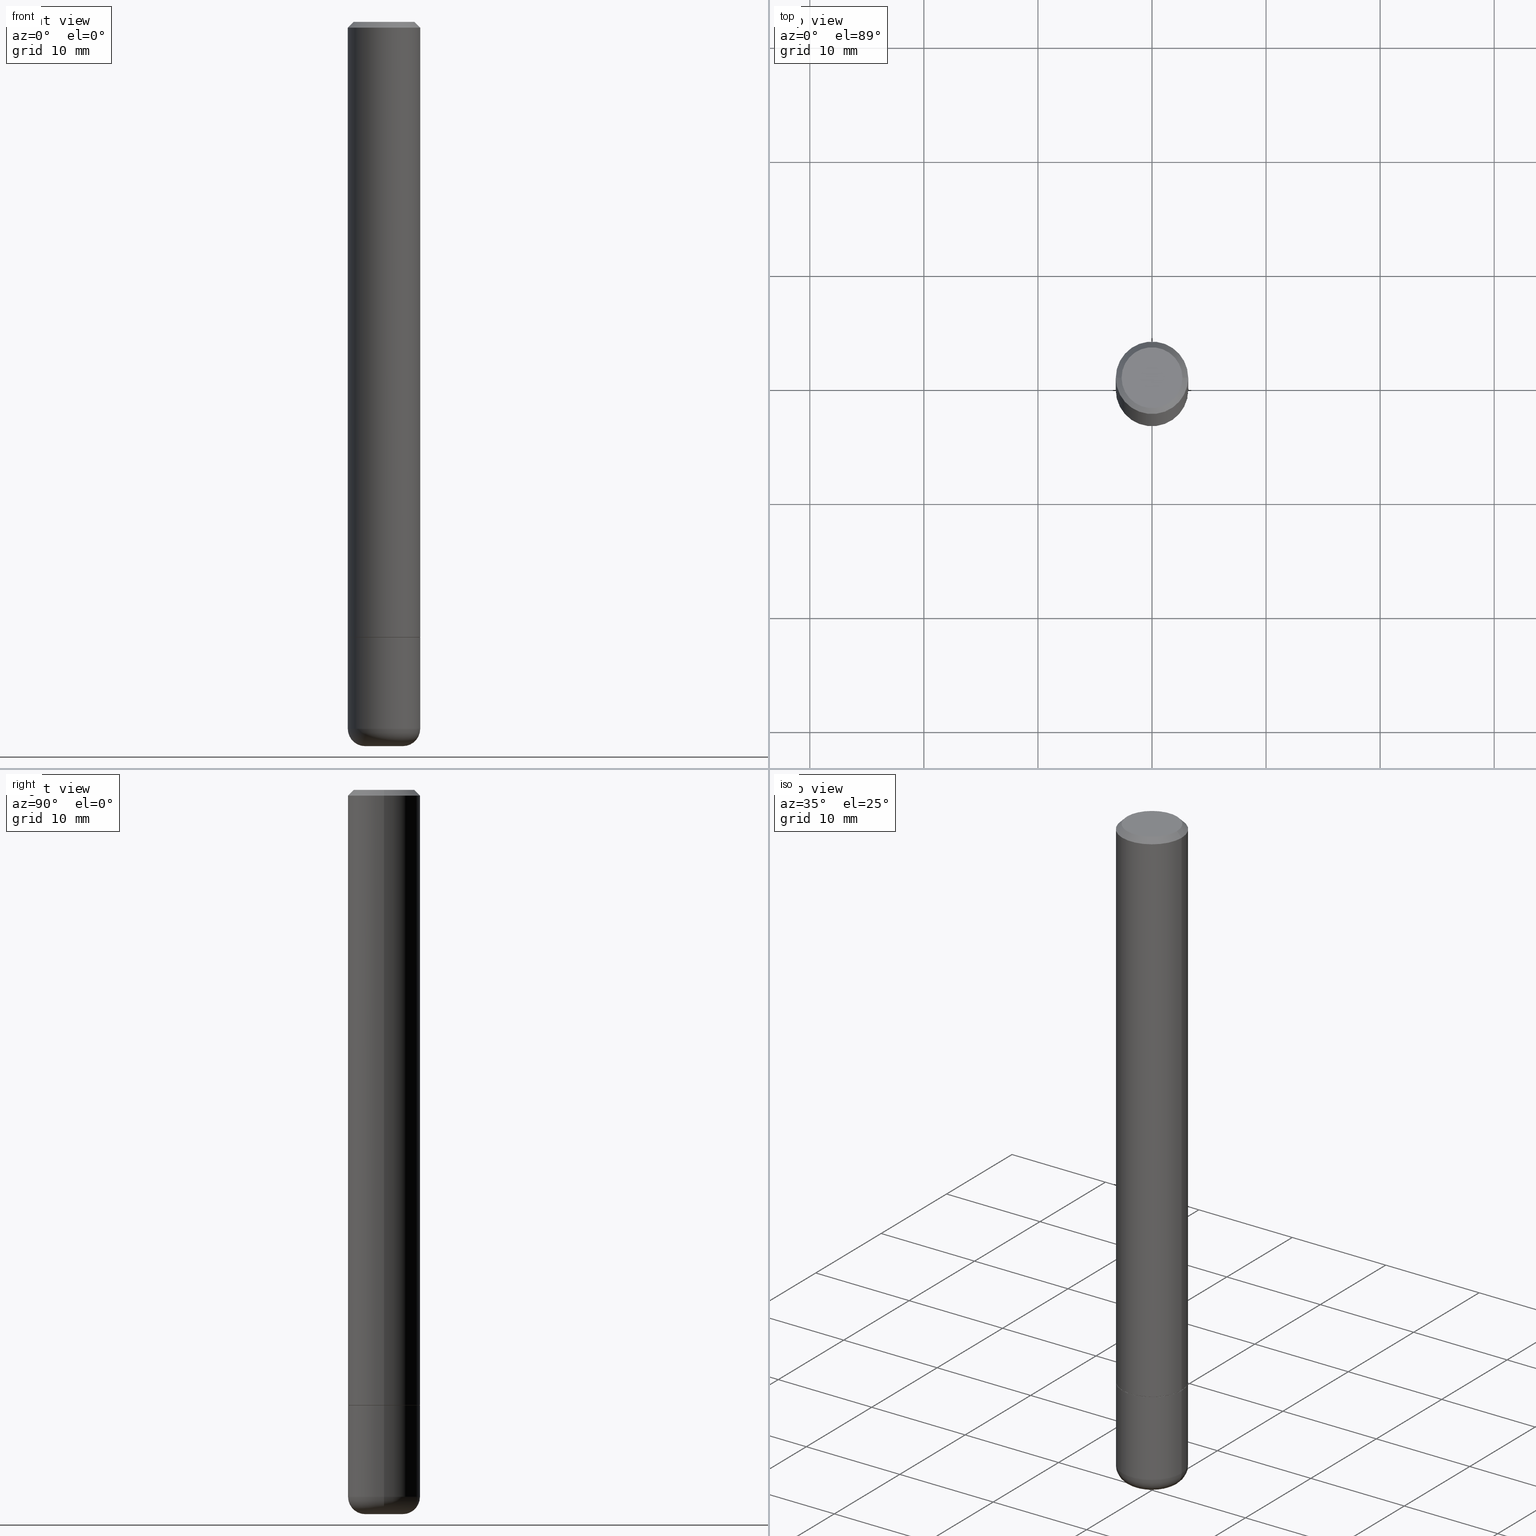
[diagram: canonical four-view strip — front | top / right | iso, engineering-drawing reading convention]
A machine part, canonical four-view strip (front | top / right | iso — engineering-drawing reading convention). The complete STEP part file that produces these views, byte-faithful:
ISO-10303-21;
HEADER;
FILE_DESCRIPTION (( 'STEP AP203' ),
    '1' );
FILE_NAME ('35578.STEP',
    '2022-11-02T20:21:41',
    ( '' ),
    ( '' ),
    'SwSTEP 2.0',
    'SolidWorks 2022',
    '' );
FILE_SCHEMA (( 'CONFIG_CONTROL_DESIGN' ));
ENDSEC;

DATA;
#1 = VERTEX_POINT ( 'NONE', #407 ) ;
#2 = COORDINATED_UNIVERSAL_TIME_OFFSET ( 5, 0, .BEHIND. ) ;
#3 = ORIENTED_EDGE ( 'NONE', *, *, #191, .T. ) ;
#4 = AXIS2_PLACEMENT_3D ( 'NONE', #312, #98, #247 ) ;
#5 =( LENGTH_UNIT ( ) NAMED_UNIT ( * ) SI_UNIT ( $, .METRE. ) );
#6 = EDGE_CURVE ( 'NONE', #241, #468, #33, .T. ) ;
#7 = EDGE_LOOP ( 'NONE', ( #38, #277, #259, #386 ) ) ;
#8 = CYLINDRICAL_SURFACE ( 'NONE', #411, 0.1249999999999993477 ) ;
#9 = VERTEX_POINT ( 'NONE', #68 ) ;
#10 = DATE_TIME_ROLE ( 'classification_date' ) ;
#11 = DIRECTION ( 'NONE',  ( 1.000000000000000000, -6.982962677686269077E-15, 0.000000000000000000 ) ) ;
#12 = VECTOR ( 'NONE', #18, 39.37007874015748143 ) ;
#13 = EDGE_CURVE ( 'NONE', #329, #319, #484, .T. ) ;
#14 = APPROVAL_PERSON_ORGANIZATION ( #226, #453, #150 ) ;
#15 = EDGE_LOOP ( 'NONE', ( #159, #309, #397, #42 ) ) ;
#16 = ORIENTED_EDGE ( 'NONE', *, *, #184, .F. ) ;
#17 = SHAPE_DEFINITION_REPRESENTATION ( #70, #414 ) ;
#18 = DIRECTION ( 'NONE',  ( 0.7071067811863059882, -2.468850131079726789E-15, 0.7071067811867890462 ) ) ;
#19 = VERTEX_POINT ( 'NONE', #476 ) ;
#20 = UNCERTAINTY_MEASURE_WITH_UNIT (LENGTH_MEASURE( 1.000000000000000082E-05 ), #492, 'distance_accuracy_value', 'NONE');
#21 = PERSON_AND_ORGANIZATION_ROLE ( 'creator' ) ;
#22 = LINE ( 'NONE', #56, #12 ) ;
#23 = DIRECTION ( 'NONE',  ( -2.445468806185136597E-29, 3.491481338843145583E-15, 1.000000000000000000 ) ) ;
#24 = CLOSED_SHELL ( 'NONE', ( #199, #488, #88, #296, #76, #207, #99, #155, #443 ) ) ;
#25 = AXIS2_PLACEMENT_3D ( 'NONE', #474, #93, #53 ) ;
#26 = LINE ( 'NONE', #77, #403 ) ;
#27 = ADVANCED_FACE ( 'NONE', ( #189 ), #313, .T. ) ;
#28 = DIRECTION ( 'NONE',  ( -2.445468806185136597E-29, 3.491481338843145583E-15, 1.000000000000000000 ) ) ;
#29 = CYLINDRICAL_SURFACE ( 'NONE', #348, 0.1249999999999997918 ) ;
#30 = CARTESIAN_POINT ( 'NONE',  ( 4.890937612370296805E-31, -6.982962677686323656E-17, -0.02000000000000009409 ) ) ;
#31 = DIRECTION ( 'NONE',  ( -1.000000000000000000, 6.982962677686275388E-15, 0.000000000000000000 ) ) ;
#32 = DIRECTION ( 'NONE',  ( -2.445468806185136877E-29, 3.491481338843145188E-15, 1.000000000000000000 ) ) ;
#33 = LINE ( 'NONE', #107, #40 ) ;
#34 = TOROIDAL_SURFACE ( 'NONE', #115, 0.06500000000000019651, 0.05999999999999985206 ) ;
#35 = SECURITY_CLASSIFICATION ( '', '', #134 ) ;
#36 = DIRECTION ( 'NONE',  ( -1.000000000000000000, 6.982962677686275388E-15, 0.000000000000000000 ) ) ;
#37 = DIRECTION ( 'NONE',  ( 1.000000000000000000, -6.982962677686263555E-15, 0.000000000000000000 ) ) ;
#38 = ORIENTED_EDGE ( 'NONE', *, *, #174, .T. ) ;
#39 = APPLICATION_PROTOCOL_DEFINITION ( 'international standard', 'config_control_design', 1994, #440 ) ;
#40 = VECTOR ( 'NONE', #74, 39.37007874015748143 ) ;
#41 = AXIS2_PLACEMENT_3D ( 'NONE', #424, #91, #237 ) ;
#42 = ORIENTED_EDGE ( 'NONE', *, *, #469, .F. ) ;
#43 =( GEOMETRIC_REPRESENTATION_CONTEXT ( 3 ) GLOBAL_UNCERTAINTY_ASSIGNED_CONTEXT ( ( #20 ) ) GLOBAL_UNIT_ASSIGNED_CONTEXT ( ( #492, #119, #231 ) ) REPRESENTATION_CONTEXT ( 'NONE', 'WORKASPACE' ) );
#44 = EDGE_CURVE ( 'NONE', #1, #9, #26, .T. ) ;
#45 = EDGE_LOOP ( 'NONE', ( #327, #58 ) ) ;
#46 = ORIENTED_EDGE ( 'NONE', *, *, #331, .F. ) ;
#47 = CC_DESIGN_PERSON_AND_ORGANIZATION_ASSIGNMENT ( #202, #236, ( #35 ) ) ;
#48 = DIRECTION ( 'NONE',  ( -2.445468806185136597E-29, 3.491481338843145583E-15, 1.000000000000000000 ) ) ;
#49 = VECTOR ( 'NONE', #406, 39.37007874015748143 ) ;
#50 = DIRECTION ( 'NONE',  ( -2.445468806185136597E-29, 3.491481338843145583E-15, 1.000000000000000000 ) ) ;
#51 = DIRECTION ( 'NONE',  ( 1.000000000000000000, -6.982962677686264344E-15, 0.000000000000000000 ) ) ;
#52 = ORIENTED_EDGE ( 'NONE', *, *, #174, .F. ) ;
#53 = DIRECTION ( 'NONE',  ( 1.000000000000000000, -6.982962677686268288E-15, 0.000000000000000000 ) ) ;
#54 = ORIENTED_EDGE ( 'NONE', *, *, #375, .F. ) ;
#55 = PERSON_AND_ORGANIZATION ( #303, #412 ) ;
#56 = CARTESIAN_POINT ( 'NONE',  ( 0.1239999999999995550, -8.285285217074779370E-15, -2.125000000000000888 ) ) ;
#57 = CIRCLE ( 'NONE', #79, 0.1049999999999992190 ) ;
#58 = ORIENTED_EDGE ( 'NONE', *, *, #216, .T. ) ;
#59 = PERSON_AND_ORGANIZATION ( #303, #412 ) ;
#60 = CC_DESIGN_PERSON_AND_ORGANIZATION_ASSIGNMENT ( #197, #377, ( #437 ) ) ;
#61 = CARTESIAN_POINT ( 'NONE',  ( 6.113672015462842613E-29, -8.728703347107864943E-15, -2.500000000000000000 ) ) ;
#62 = ORIENTED_EDGE ( 'NONE', *, *, #375, .T. ) ;
#63 = LINE ( 'NONE', #390, #432 ) ;
#64 = DIRECTION ( 'NONE',  ( 1.000000000000000000, -6.982962677686263555E-15, 0.000000000000000000 ) ) ;
#65 = EDGE_CURVE ( 'NONE', #289, #376, #57, .T. ) ;
#66 = CARTESIAN_POINT ( 'NONE',  ( 6.113387482807804113E-29, -8.728297109885438444E-15, -2.499883649035179900 ) ) ;
#67 = CONICAL_SURFACE ( 'NONE', #404, 0.05114390787009806538, 1.535889741755004367 ) ;
#68 = CARTESIAN_POINT ( 'NONE',  ( -0.1249999999999995559, -7.081131724556683478E-15, -2.125000000000000000 ) ) ;
#69 = AXIS2_PLACEMENT_3D ( 'NONE', #217, #336, #37 ) ;
#70 = PRODUCT_DEFINITION_SHAPE ( 'NONE', 'NONE',  #437 ) ;
#71 = CC_DESIGN_PERSON_AND_ORGANIZATION_ASSIGNMENT ( #82, #379, ( #140 ) ) ;
#72 = CARTESIAN_POINT ( 'NONE',  ( 0.1239999999999995550, -8.285285217074779370E-15, -2.125000000000000888 ) ) ;
#73 = MANIFOLD_SOLID_BREP ( 'Body-Move/Copy2[1]', #24 ) ;
#74 = DIRECTION ( 'NONE',  ( -2.445468806185136877E-29, 3.491481338843145188E-15, 1.000000000000000000 ) ) ;
#75 = CARTESIAN_POINT ( 'NONE',  ( -0.06447640787009809027, -7.950807469239815743E-15, -2.500000000000000000 ) ) ;
#76 = ADVANCED_FACE ( 'NONE', ( #325 ), #67, .F. ) ;
#77 = CARTESIAN_POINT ( 'NONE',  ( -0.1249999999999997918, 8.881784197001237532E-16, -6.148668862818622418E-30 ) ) ;
#78 = DIRECTION ( 'NONE',  ( -2.445468806185136597E-29, 3.491481338843145583E-15, 1.000000000000000000 ) ) ;
#79 = AXIS2_PLACEMENT_3D ( 'NONE', #218, #180, #220 ) ;
#80 = AXIS2_PLACEMENT_3D ( 'NONE', #347, #87, #345 ) ;
#81 = CARTESIAN_POINT ( 'NONE',  ( -0.1239999999999995550, -6.538324852699165710E-15, -2.125000000000000888 ) ) ;
#82 = PERSON_AND_ORGANIZATION ( #303, #412 ) ;
#83 = ORIENTED_EDGE ( 'NONE', *, *, #331, .T. ) ;
#84 = DATE_AND_TIME ( #153, #285 ) ;
#85 = AXIS2_PLACEMENT_3D ( 'NONE', #353, #177, #242 ) ;
#86 = CIRCLE ( 'NONE', #244, 0.05114390787009806538 ) ;
#87 = DIRECTION ( 'NONE',  ( -2.438088387897960049E-29, 3.491481338843145188E-15, 1.000000000000000000 ) ) ;
#88 = ADVANCED_FACE ( 'NONE', ( #137 ), #436, .T. ) ;
#89 = ORIENTED_EDGE ( 'NONE', *, *, #184, .T. ) ;
#90 = LOCAL_TIME ( 16, 21, 41.00000000000000000, #314 ) ;
#91 = DIRECTION ( 'NONE',  ( 2.445468806185136597E-29, -3.491481338843145583E-15, -1.000000000000000000 ) ) ;
#92 = FACE_OUTER_BOUND ( 'NONE', #439, .T. ) ;
#93 = DIRECTION ( 'NONE',  ( -2.445468806185136597E-29, 3.491481338843145583E-15, 1.000000000000000000 ) ) ;
#94 = CARTESIAN_POINT ( 'NONE',  ( -0.1239999999999995550, -6.533026398350942519E-15, -2.125000000000000888 ) ) ;
#95 = TOROIDAL_SURFACE ( 'NONE', #158, 0.06500000000000019651, 0.05999999999999985206 ) ;
#96 = ORIENTED_EDGE ( 'NONE', *, *, #216, .F. ) ;
#97 = ORIENTED_EDGE ( 'NONE', *, *, #416, .T. ) ;
#98 = DIRECTION ( 'NONE',  ( -2.445468806185136597E-29, 3.491481338843145583E-15, 1.000000000000000000 ) ) ;
#99 = ADVANCED_FACE ( 'NONE', ( #139 ), #29, .T. ) ;
#100 = DIRECTION ( 'NONE',  ( 1.000000000000000000, -6.982962677686263555E-15, 0.000000000000000000 ) ) ;
#101 = PLANE ( 'NONE',  #80 ) ;
#102 = FACE_OUTER_BOUND ( 'NONE', #45, .T. ) ;
#103 = DIRECTION ( 'NONE',  ( 1.000000000000000000, -6.982962677686265922E-15, 4.876176775795935793E-29 ) ) ;
#104 = CIRCLE ( 'NONE', #421, 0.06447640787009809027 ) ;
#105 = VERTEX_POINT ( 'NONE', #287 ) ;
#106 = LINE ( 'NONE', #149, #450 ) ;
#107 = CARTESIAN_POINT ( 'NONE',  ( -0.1249999999999993477, 8.881784197001205978E-16, -6.148668862818600698E-30 ) ) ;
#108 = DIRECTION ( 'NONE',  ( -0.7071067811865465735, 2.468850131082246805E-15, -0.7071067811865484609 ) ) ;
#109 = CARTESIAN_POINT ( 'NONE',  ( 4.890937612370296805E-31, -6.982962677686323656E-17, -0.02000000000000009409 ) ) ;
#110 = DIRECTION ( 'NONE',  ( 0.000000000000000000, 0.000000000000000000, 1.000000000000000000 ) ) ;
#111 = EDGE_CURVE ( 'NONE', #121, #311, #187, .T. ) ;
#112 = CALENDAR_DATE ( 2022, 2, 11 ) ;
#113 = CALENDAR_DATE ( 2022, 2, 11 ) ;
#114 = AXIS2_PLACEMENT_3D ( 'NONE', #293, #446, #297 ) ;
#115 = AXIS2_PLACEMENT_3D ( 'NONE', #206, #398, #361 ) ;
#116 = ADVANCED_FACE ( 'NONE', ( #102 ), #250, .F. ) ;
#117 = DIRECTION ( 'NONE',  ( -2.445468806185136597E-29, 3.491481338843145583E-15, 1.000000000000000000 ) ) ;
#118 = ORIENTED_EDGE ( 'NONE', *, *, #359, .F. ) ;
#119 =( NAMED_UNIT ( * ) PLANE_ANGLE_UNIT ( ) SI_UNIT ( $, .RADIAN. ) );
#120 = ORIENTED_EDGE ( 'NONE', *, *, #382, .T. ) ;
#121 = VERTEX_POINT ( 'NONE', #94 ) ;
#122 = CIRCLE ( 'NONE', #4, 0.1049999999999992190 ) ;
#123 = AXIS2_PLACEMENT_3D ( 'NONE', #381, #48, #198 ) ;
#124 = CARTESIAN_POINT ( 'NONE',  ( 6.113672015462842613E-29, -8.728703347107864943E-15, -2.500000000000000000 ) ) ;
#125 = EDGE_CURVE ( 'NONE', #266, #241, #491, .T. ) ;
#126 = DATE_AND_TIME ( #387, #302 ) ;
#127 = FACE_OUTER_BOUND ( 'NONE', #451, .T. ) ;
#128 = ORIENTED_EDGE ( 'NONE', *, *, #111, .F. ) ;
#129 = ORIENTED_EDGE ( 'NONE', *, *, #44, .F. ) ;
#130 = CARTESIAN_POINT ( 'NONE',  ( 6.113672015462842613E-29, -8.728703347107864943E-15, -2.500000000000000000 ) ) ;
#131 = APPROVAL_DATE_TIME ( #473, #318 ) ;
#132 = EDGE_CURVE ( 'NONE', #208, #360, #444, .T. ) ;
#133 = VECTOR ( 'NONE', #203, 39.37007874015748143 ) ;
#134 = SECURITY_CLASSIFICATION_LEVEL ( 'unclassified' ) ;
#135 = CARTESIAN_POINT ( 'NONE',  ( 5.966949474049262823E-29, -8.519222443471929064E-15, -2.440002284616149986 ) ) ;
#136 = CC_DESIGN_APPROVAL ( #306, ( #35 ) ) ;
#137 = FACE_OUTER_BOUND ( 'NONE', #7, .T. ) ;
#138 = DIRECTION ( 'NONE',  ( -1.000000000000000000, 6.982962677686264344E-15, 0.000000000000000000 ) ) ;
#139 = FACE_OUTER_BOUND ( 'NONE', #235, .T. ) ;
#140 = PRODUCT ( '35578', '35578', '', ( #490 ) ) ;
#141 = DIRECTION ( 'NONE',  ( -2.445468806185136597E-29, 3.491481338843145583E-15, 1.000000000000000000 ) ) ;
#142 = ORIENTED_EDGE ( 'NONE', *, *, #125, .T. ) ;
#143 = CARTESIAN_POINT ( 'NONE',  ( 5.196621213143415268E-29, -7.419397845041685201E-15, -2.125000000000000000 ) ) ;
#144 = AXIS2_PLACEMENT_3D ( 'NONE', #315, #435, #280 ) ;
#145 = CARTESIAN_POINT ( 'NONE',  ( 0.000000000000000000, 0.000000000000000000, 0.000000000000000000 ) ) ;
#146 = APPLICATION_CONTEXT ( 'configuration controlled 3d designs of mechanical parts and assemblies' ) ;
#147 = LINE ( 'NONE', #367, #477 ) ;
#148 = EDGE_CURVE ( 'NONE', #311, #266, #22, .T. ) ;
#149 = CARTESIAN_POINT ( 'NONE',  ( -0.06447640787009809027, -8.278466997359692357E-15, -2.500000000000000000 ) ) ;
#150 = APPROVAL_ROLE ( '' ) ;
#151 = EDGE_CURVE ( 'NONE', #376, #264, #321, .T. ) ;
#152 = CIRCLE ( 'NONE', #452, 0.1249999999999992090 ) ;
#153 = CALENDAR_DATE ( 2022, 2, 11 ) ;
#154 = ORIENTED_EDGE ( 'NONE', *, *, #125, .F. ) ;
#155 = ADVANCED_FACE ( 'NONE', ( #127 ), #34, .T. ) ;
#156 = DATE_TIME_ROLE ( 'creation_date' ) ;
#157 = AXIS2_PLACEMENT_3D ( 'NONE', #185, #330, #479 ) ;
#158 = AXIS2_PLACEMENT_3D ( 'NONE', #308, #50, #337 ) ;
#159 = ORIENTED_EDGE ( 'NONE', *, *, #389, .F. ) ;
#160 = PERSON_AND_ORGANIZATION ( #303, #412 ) ;
#161 = EDGE_LOOP ( 'NONE', ( #54, #357, #118 ) ) ;
#162 = EDGE_CURVE ( 'NONE', #19, #208, #393, .T. ) ;
#163 = DIRECTION ( 'NONE',  ( -1.000000000000000000, 6.982962677686265922E-15, -4.876176775795935793E-29 ) ) ;
#164 = ORIENTED_EDGE ( 'NONE', *, *, #162, .T. ) ;
#165 = AXIS2_PLACEMENT_3D ( 'NONE', #409, #256, #100 ) ;
#166 = AXIS2_PLACEMENT_3D ( 'NONE', #248, #400, #64 ) ;
#167 = APPROVAL_STATUS ( 'not_yet_approved' ) ;
#168 = FACE_OUTER_BOUND ( 'NONE', #442, .T. ) ;
#169 = ORIENTED_EDGE ( 'NONE', *, *, #307, .T. ) ;
#170 = ORIENTED_EDGE ( 'NONE', *, *, #419, .T. ) ;
#171 = APPROVAL_DATE_TIME ( #320, #306 ) ;
#172 = DIRECTION ( 'NONE',  ( -1.000000000000000000, 6.982962677686264344E-15, 0.000000000000000000 ) ) ;
#173 = ORIENTED_EDGE ( 'NONE', *, *, #223, .T. ) ;
#174 = EDGE_CURVE ( 'NONE', #105, #1, #339, .T. ) ;
#175 = EDGE_LOOP ( 'NONE', ( #282, #128 ) ) ;
#176 = APPROVAL_ROLE ( '' ) ;
#177 = DIRECTION ( 'NONE',  ( -2.445468806185136597E-29, 3.491481338843145583E-15, 1.000000000000000000 ) ) ;
#178 = CIRCLE ( 'NONE', #396, 0.1249999999999995559 ) ;
#179 = FACE_OUTER_BOUND ( 'NONE', #343, .T. ) ;
#180 = DIRECTION ( 'NONE',  ( -2.445468806185136597E-29, 3.491481338843145583E-15, 1.000000000000000000 ) ) ;
#181 = DIRECTION ( 'NONE',  ( -2.445468806185136597E-29, 3.491481338843145583E-15, 1.000000000000000000 ) ) ;
#182 = CARTESIAN_POINT ( 'NONE',  ( 7.332110811570524037E-16, 0.1049999999999992190, -3.900823592740798305E-16 ) ) ;
#183 = DIRECTION ( 'NONE',  ( 2.445468806185136597E-29, -3.491481338843145583E-15, -1.000000000000000000 ) ) ;
#184 = EDGE_CURVE ( 'NONE', #9, #240, #425, .T. ) ;
#185 = CARTESIAN_POINT ( 'NONE',  ( 0.000000000000000000, 0.000000000000000000, 0.000000000000000000 ) ) ;
#186 = DIRECTION ( 'NONE',  ( -2.445468806185136597E-29, 3.491481338843145583E-15, 1.000000000000000000 ) ) ;
#187 = CIRCLE ( 'NONE', #166, 0.1239999999999995550 ) ;
#188 = PRODUCT_DEFINITION_FORMATION_WITH_SPECIFIED_SOURCE ( 'ANY', '', #140, .NOT_KNOWN. ) ;
#189 = FACE_OUTER_BOUND ( 'NONE', #15, .T. ) ;
#190 = CARTESIAN_POINT ( 'NONE',  ( 0.05114390787009806538, -9.079169787426458453E-15, -2.499883649035179900 ) ) ;
#191 = EDGE_CURVE ( 'NONE', #1, #105, #274, .T. ) ;
#192 = CARTESIAN_POINT ( 'NONE',  ( -0.1049999999999992190, 7.681258945454834611E-16, -4.695363739110977184E-17 ) ) ;
#193 = CONICAL_SURFACE ( 'NONE', #354, 0.06447640787009809027, 1.562069680534929894 ) ;
#194 = ORIENTED_EDGE ( 'NONE', *, *, #268, .T. ) ;
#195 = APPROVAL_ROLE ( '' ) ;
#196 = ORIENTED_EDGE ( 'NONE', *, *, #389, .T. ) ;
#197 = PERSON_AND_ORGANIZATION ( #303, #412 ) ;
#198 = DIRECTION ( 'NONE',  ( 1.000000000000000000, -6.982962677686268288E-15, 0.000000000000000000 ) ) ;
#199 = ADVANCED_FACE ( 'NONE', ( #179 ), #193, .F. ) ;
#200 = CARTESIAN_POINT ( 'NONE',  ( 0.1249999999999994865, -8.288776698413622377E-15, -2.124000000000000110 ) ) ;
#201 = PRODUCT_RELATED_PRODUCT_CATEGORY ( 'detail', '', ( #140 ) ) ;
#202 = PERSON_AND_ORGANIZATION ( #303, #412 ) ;
#203 = DIRECTION ( 'NONE',  ( 0.7071067811865465735, -7.319954787623252890E-15, -0.7071067811865484609 ) ) ;
#204 = CONICAL_SURFACE ( 'NONE', #385, 0.05114390787009806538, 1.535889741755004367 ) ;
#205 = COORDINATED_UNIVERSAL_TIME_OFFSET ( 5, 0, .BEHIND. ) ;
#206 = CARTESIAN_POINT ( 'NONE',  ( 5.966949474049262823E-29, -8.519222443471929064E-15, -2.440002284616149986 ) ) ;
#207 = ADVANCED_FACE ( 'NONE', ( #168 ), #317, .F. ) ;
#208 = VERTEX_POINT ( 'NONE', #429 ) ;
#209 = CARTESIAN_POINT ( 'NONE',  ( 0.1249999999999992090, -9.273918764982992215E-16, -0.02000000000000009409 ) ) ;
#210 = ORIENTED_EDGE ( 'NONE', *, *, #268, .F. ) ;
#211 = CARTESIAN_POINT ( 'NONE',  ( 0.06500000000000019651, -8.973115017521537346E-15, -2.440002284616149986 ) ) ;
#212 = ORIENTED_EDGE ( 'NONE', *, *, #382, .F. ) ;
#213 = CARTESIAN_POINT ( 'NONE',  ( 0.000000000000000000, 0.000000000000000000, 0.000000000000000000 ) ) ;
#214 = CONICAL_SURFACE ( 'NONE', #445, 0.06447640787009809027, 1.562069680534929894 ) ;
#215 = CARTESIAN_POINT ( 'NONE',  ( -0.05114390787009806538, -8.371161110037518943E-15, -2.499883649035179900 ) ) ;
#216 = EDGE_CURVE ( 'NONE', #376, #289, #122, .T. ) ;
#217 = CARTESIAN_POINT ( 'NONE',  ( 5.196621213143416389E-29, -7.419397845041686779E-15, -2.125000000000000888 ) ) ;
#218 = CARTESIAN_POINT ( 'NONE',  ( 1.148236555768741665E-45, -1.639377487418492057E-31, -4.695363739110452099E-17 ) ) ;
#219 = DIRECTION ( 'NONE',  ( -0.9999619230641714207, 6.952228252019186602E-15, -0.008726535498369011531 ) ) ;
#220 = DIRECTION ( 'NONE',  ( 1.000000000000000000, -6.982962677686267499E-15, 4.874400871621274649E-29 ) ) ;
#221 = FACE_OUTER_BOUND ( 'NONE', #238, .T. ) ;
#222 = AXIS2_PLACEMENT_3D ( 'NONE', #213, #326, #103 ) ;
#223 = EDGE_CURVE ( 'NONE', #105, #240, #63, .T. ) ;
#224 = CARTESIAN_POINT ( 'NONE',  ( 6.113387482807804113E-29, -8.728297109885438444E-15, -2.499883649035179900 ) ) ;
#225 = CC_DESIGN_PERSON_AND_ORGANIZATION_ASSIGNMENT ( #160, #21, ( #188 ) ) ;
#226 = PERSON_AND_ORGANIZATION ( #303, #412 ) ;
#227 = LENGTH_MEASURE_WITH_UNIT ( LENGTH_MEASURE( 0.02539999999999999897 ), #5 );
#228 = MANIFOLD_SOLID_BREP ( 'Body-Move/Copy2[2]', #299 ) ;
#229 = AXIS2_PLACEMENT_3D ( 'NONE', #61, #427, #399 ) ;
#230 = LOCAL_TIME ( 16, 21, 41.00000000000000000, #2 ) ;
#231 =( NAMED_UNIT ( * ) SI_UNIT ( $, .STERADIAN. ) SOLID_ANGLE_UNIT ( ) );
#232 = CARTESIAN_POINT ( 'NONE',  ( 0.000000000000000000, 0.000000000000000000, 0.000000000000000000 ) ) ;
#233 = DIRECTION ( 'NONE',  ( 1.000000000000000000, 0.000000000000000000, 0.000000000000000000 ) ) ;
#234 = CIRCLE ( 'NONE', #371, 0.05114390787009806538 ) ;
#235 = EDGE_LOOP ( 'NONE', ( #129, #3, #173, #16 ) ) ;
#236 = PERSON_AND_ORGANIZATION_ROLE ( 'classification_officer' ) ;
#237 = DIRECTION ( 'NONE',  ( -1.000000000000000000, 6.982962677686267499E-15, 0.000000000000000000 ) ) ;
#238 = EDGE_LOOP ( 'NONE', ( #96, #362, #245, #254 ) ) ;
#239 = CARTESIAN_POINT ( 'NONE',  ( 0.000000000000000000, 0.000000000000000000, 0.000000000000000000 ) ) ;
#240 = VERTEX_POINT ( 'NONE', #324 ) ;
#241 = VERTEX_POINT ( 'NONE', #467 ) ;
#242 = DIRECTION ( 'NONE',  ( 1.000000000000000000, -6.982962677686269077E-15, 0.000000000000000000 ) ) ;
#243 = VECTOR ( 'NONE', #32, 39.37007874015748143 ) ;
#244 = AXIS2_PLACEMENT_3D ( 'NONE', #224, #78, #288 ) ;
#245 = ORIENTED_EDGE ( 'NONE', *, *, #346, .T. ) ;
#246 = ORIENTED_EDGE ( 'NONE', *, *, #359, .T. ) ;
#247 = DIRECTION ( 'NONE',  ( 1.000000000000000000, -6.982962677686267499E-15, 4.874400871621274649E-29 ) ) ;
#248 = CARTESIAN_POINT ( 'NONE',  ( 5.196621213143416389E-29, -7.419397845041686779E-15, -2.125000000000000888 ) ) ;
#249 = CARTESIAN_POINT ( 'NONE',  ( -0.05114390787009806538, -8.371161110037518943E-15, -2.499883649035179900 ) ) ;
#250 = PLANE ( 'NONE',  #364 ) ;
#251 = EDGE_CURVE ( 'NONE', #208, #105, #463, .T. ) ;
#252 = AXIS2_PLACEMENT_3D ( 'NONE', #211, #478, #278 ) ;
#253 = DIRECTION ( 'NONE',  ( 1.000000000000000000, -6.982962677686264344E-15, 0.000000000000000000 ) ) ;
#254 = ORIENTED_EDGE ( 'NONE', *, *, #419, .F. ) ;
#255 = CARTESIAN_POINT ( 'NONE',  ( 6.109019913137040707E-29, -8.722061377921489685E-15, -2.498097664417540553 ) ) ;
#256 = DIRECTION ( 'NONE',  ( -2.445468806185136597E-29, 3.491481338843145583E-15, 1.000000000000000000 ) ) ;
#257 = DIRECTION ( 'NONE',  ( 2.445468806185136597E-29, -3.491481338843145583E-15, -1.000000000000000000 ) ) ;
#258 = ADVANCED_FACE ( 'NONE', ( #272 ), #269, .T. ) ;
#259 = ORIENTED_EDGE ( 'NONE', *, *, #304, .F. ) ;
#260 = CARTESIAN_POINT ( 'NONE',  ( 0.1249999999999993477, -8.728703347107787043E-16, 6.095220969744888212E-30 ) ) ;
#261 = AXIS2_PLACEMENT_3D ( 'NONE', #333, #141, #369 ) ;
#262 = APPROVAL_PERSON_ORGANIZATION ( #265, #318, #195 ) ;
#263 = DESIGN_CONTEXT ( 'detailed design', #440, 'design' ) ;
#264 = VERTEX_POINT ( 'NONE', #388 ) ;
#265 = PERSON_AND_ORGANIZATION ( #303, #412 ) ;
#266 = VERTEX_POINT ( 'NONE', #200 ) ;
#267 = APPROVAL_STATUS ( 'not_yet_approved' ) ;
#268 = EDGE_CURVE ( 'NONE', #360, #208, #104, .T. ) ;
#269 = CONICAL_SURFACE ( 'NONE', #41, 0.1249999999999992090, 0.7853981633974469467 ) ;
#270 = ADVANCED_FACE ( 'NONE', ( #92 ), #8, .T. ) ;
#271 = ORIENTED_EDGE ( 'NONE', *, *, #148, .F. ) ;
#272 = FACE_OUTER_BOUND ( 'NONE', #391, .T. ) ;
#273 = VECTOR ( 'NONE', #322, 39.37007874015748143 ) ;
#274 = CIRCLE ( 'NONE', #301, 0.1250000000000000278 ) ;
#275 = CC_DESIGN_APPROVAL ( #318, ( #188 ) ) ;
#276 = DIRECTION ( 'NONE',  ( 0.9999619230641714207, -6.890705306874825328E-15, -0.008726535498369011531 ) ) ;
#277 = ORIENTED_EDGE ( 'NONE', *, *, #44, .T. ) ;
#278 = DIRECTION ( 'NONE',  ( 1.000000000000000000, -6.982962677686253300E-15, 0.000000000000000000 ) ) ;
#279 = ORIENTED_EDGE ( 'NONE', *, *, #6, .F. ) ;
#280 = DIRECTION ( 'NONE',  ( -1.000000000000000000, 6.982962677686265922E-15, -4.876176775795935793E-29 ) ) ;
#281 = ORIENTED_EDGE ( 'NONE', *, *, #481, .F. ) ;
#282 = ORIENTED_EDGE ( 'NONE', *, *, #416, .F. ) ;
#283 = CIRCLE ( 'NONE', #394, 0.1249999999999992090 ) ;
#284 = CC_DESIGN_PERSON_AND_ORGANIZATION_ASSIGNMENT ( #55, #310, ( #188 ) ) ;
#285 = LOCAL_TIME ( 16, 21, 41.00000000000000000, #422 ) ;
#286 = DIRECTION ( 'NONE',  ( 2.445468806185136597E-29, -3.491481338843145583E-15, -1.000000000000000000 ) ) ;
#287 = CARTESIAN_POINT ( 'NONE',  ( 0.1250000000000000278, -9.392092778182712402E-15, -2.440002284616149986 ) ) ;
#288 = DIRECTION ( 'NONE',  ( 1.000000000000000000, -6.982962677686255667E-15, 0.000000000000000000 ) ) ;
#289 = VERTEX_POINT ( 'NONE', #192 ) ;
#290 = LINE ( 'NONE', #190, #475 ) ;
#291 = CC_DESIGN_DATE_AND_TIME_ASSIGNMENT ( #454, #156, ( #437 ) ) ;
#292 = EDGE_LOOP ( 'NONE', ( #97, #196, #154, #271 ) ) ;
#293 = CARTESIAN_POINT ( 'NONE',  ( -0.06500000000000019651, -8.057369665227862744E-15, -2.440002284616149986 ) ) ;
#294 = LOCAL_TIME ( 16, 21, 41.00000000000000000, #342 ) ;
#295 = CARTESIAN_POINT ( 'NONE',  ( 6.113387482807804113E-29, -8.728297109885438444E-15, -2.499883649035179900 ) ) ;
#296 = ADVANCED_FACE ( 'NONE', ( #408 ), #204, .F. ) ;
#297 = DIRECTION ( 'NONE',  ( -1.000000000000000000, 7.105427357601008170E-15, 0.000000000000000000 ) ) ;
#298 = DIRECTION ( 'NONE',  ( 1.000000000000000000, -6.982962677686265922E-15, 4.876176775795935793E-29 ) ) ;
#299 = CLOSED_SHELL ( 'NONE', ( #352, #338, #426, #258, #270, #27, #460, #116 ) ) ;
#300 = APPROVAL_DATE_TIME ( #84, #453 ) ;
#301 = AXIS2_PLACEMENT_3D ( 'NONE', #135, #356, #11 ) ;
#302 = LOCAL_TIME ( 16, 21, 41.00000000000000000, #205 ) ;
#303 = PERSON ( 'UNSPECIFIED', 'UNSPECIFIED', 'UNSPECIFIED', ('UNSPECIFIED'), ('UNSPECIFIED'), ('UNSPECIFIED') ) ;
#304 = EDGE_CURVE ( 'NONE', #240, #9, #178, .T. ) ;
#305 = APPLICATION_PROTOCOL_DEFINITION ( 'international standard', 'config_control_design', 1994, #146 ) ;
#306 = APPROVAL ( #167, 'UNSPECIFIED' ) ;
#307 = EDGE_CURVE ( 'NONE', #360, #1, #332, .T. ) ;
#308 = CARTESIAN_POINT ( 'NONE',  ( 5.966949474049262823E-29, -8.519222443471929064E-15, -2.440002284616149986 ) ) ;
#309 = ORIENTED_EDGE ( 'NONE', *, *, #111, .T. ) ;
#310 = PERSON_AND_ORGANIZATION_ROLE ( 'design_supplier' ) ;
#311 = VERTEX_POINT ( 'NONE', #72 ) ;
#312 = CARTESIAN_POINT ( 'NONE',  ( 1.148236555768741665E-45, -1.639377487418492057E-31, -4.695363739110452099E-17 ) ) ;
#313 = CONICAL_SURFACE ( 'NONE', #165, 0.1239999999999995550, 0.7853981633971067744 ) ;
#314 = COORDINATED_UNIVERSAL_TIME_OFFSET ( 5, 0, .BEHIND. ) ;
#315 = CARTESIAN_POINT ( 'NONE',  ( 8.728703347108319524E-16, 0.1249999999999921313, -2.125000000000000888 ) ) ;
#316 = ORIENTED_EDGE ( 'NONE', *, *, #132, .T. ) ;
#317 = PLANE ( 'NONE',  #144 ) ;
#318 = APPROVAL ( #267, 'UNSPECIFIED' ) ;
#319 = VERTEX_POINT ( 'NONE', #249 ) ;
#320 = DATE_AND_TIME ( #466, #90 ) ;
#321 = LINE ( 'NONE', #209, #133 ) ;
#322 = DIRECTION ( 'NONE',  ( -0.9993908270190955401, 6.856857904024535960E-15, -0.03489949670250663133 ) ) ;
#323 = CIRCLE ( 'NONE', #69, 0.1239999999999995550 ) ;
#324 = CARTESIAN_POINT ( 'NONE',  ( 0.1249999999999995559, -8.292268179752463807E-15, -2.125000000000000000 ) ) ;
#325 = FACE_OUTER_BOUND ( 'NONE', #161, .T. ) ;
#326 = DIRECTION ( 'NONE',  ( -2.445468806185136597E-29, 3.491481338843145583E-15, 1.000000000000000000 ) ) ;
#327 = ORIENTED_EDGE ( 'NONE', *, *, #65, .T. ) ;
#328 = FACE_OUTER_BOUND ( 'NONE', #465, .T. ) ;
#329 = VERTEX_POINT ( 'NONE', #255 ) ;
#330 = DIRECTION ( 'NONE',  ( -2.445468806185136597E-29, 3.491481338843145583E-15, 1.000000000000000000 ) ) ;
#331 = EDGE_CURVE ( 'NONE', #266, #264, #480, .T. ) ;
#332 = CIRCLE ( 'NONE', #114, 0.05999999999999985206 ) ;
#333 = CARTESIAN_POINT ( 'NONE',  ( 5.196621213143416389E-29, -7.419397845041686779E-15, -2.125000000000000888 ) ) ;
#334 = ORIENTED_EDGE ( 'NONE', *, *, #251, .T. ) ;
#335 = DIRECTION ( 'NONE',  ( 1.000000000000000000, -6.982962677686267499E-15, 0.000000000000000000 ) ) ;
#336 = DIRECTION ( 'NONE',  ( -2.445468806185136597E-29, 3.491481338843145583E-15, 1.000000000000000000 ) ) ;
#337 = DIRECTION ( 'NONE',  ( 1.000000000000000000, -6.982962677686268288E-15, 4.883557194083113462E-29 ) ) ;
#338 = ADVANCED_FACE ( 'NONE', ( #449 ), #401, .T. ) ;
#339 = CIRCLE ( 'NONE', #85, 0.1250000000000000278 ) ;
#340 = AXIS2_PLACEMENT_3D ( 'NONE', #30, #183, #410 ) ;
#341 = ORIENTED_EDGE ( 'NONE', *, *, #65, .F. ) ;
#342 = COORDINATED_UNIVERSAL_TIME_OFFSET ( 5, 0, .BEHIND. ) ;
#343 = EDGE_LOOP ( 'NONE', ( #350, #164, #210, #212 ) ) ;
#344 = ORIENTED_EDGE ( 'NONE', *, *, #151, .F. ) ;
#345 = DIRECTION ( 'NONE',  ( 1.000000000000000000, -6.982962677686265922E-15, 4.876176775795935793E-29 ) ) ;
#346 = EDGE_CURVE ( 'NONE', #264, #468, #283, .T. ) ;
#347 = CARTESIAN_POINT ( 'NONE',  ( 5.196621213143416389E-29, -7.419397845041685201E-15, -2.125000000000000444 ) ) ;
#348 = AXIS2_PLACEMENT_3D ( 'NONE', #145, #447, #370 ) ;
#349 = CC_DESIGN_APPROVAL ( #453, ( #437 ) ) ;
#350 = ORIENTED_EDGE ( 'NONE', *, *, #430, .T. ) ;
#351 = DIRECTION ( 'NONE',  ( -2.445468806185136597E-29, 3.491481338843145583E-15, 1.000000000000000000 ) ) ;
#352 = ADVANCED_FACE ( 'NONE', ( #413 ), #456, .T. ) ;
#353 = CARTESIAN_POINT ( 'NONE',  ( 5.966949474049262823E-29, -8.519222443471929064E-15, -2.440002284616149986 ) ) ;
#354 = AXIS2_PLACEMENT_3D ( 'NONE', #124, #286, #172 ) ;
#355 = ORIENTED_EDGE ( 'NONE', *, *, #346, .F. ) ;
#356 = DIRECTION ( 'NONE',  ( -2.445468806185136597E-29, 3.491481338843145583E-15, 1.000000000000000000 ) ) ;
#357 = ORIENTED_EDGE ( 'NONE', *, *, #13, .T. ) ;
#358 = CARTESIAN_POINT ( 'NONE',  ( 5.196621213143415268E-29, -7.419397845041685201E-15, -2.125000000000000000 ) ) ;
#359 = EDGE_CURVE ( 'NONE', #19, #319, #234, .T. ) ;
#360 = VERTEX_POINT ( 'NONE', #75 ) ;
#361 = DIRECTION ( 'NONE',  ( 1.000000000000000000, -6.982962677686268288E-15, 4.883557194083113462E-29 ) ) ;
#362 = ORIENTED_EDGE ( 'NONE', *, *, #151, .T. ) ;
#363 = CC_DESIGN_DATE_AND_TIME_ASSIGNMENT ( #126, #10, ( #35 ) ) ;
#364 = AXIS2_PLACEMENT_3D ( 'NONE', #182, #402, #163 ) ;
#365 = DIRECTION ( 'NONE',  ( 1.000000000000000000, -6.982962677686255667E-15, 0.000000000000000000 ) ) ;
#366 = DIRECTION ( 'NONE',  ( -2.445468806185136877E-29, 3.491481338843145188E-15, 1.000000000000000000 ) ) ;
#367 = CARTESIAN_POINT ( 'NONE',  ( -0.1249999999999992090, 8.030407079339147158E-16, -0.02000000000000009409 ) ) ;
#368 = DIRECTION ( 'NONE',  ( 2.445468806185136597E-29, -3.491481338843145583E-15, -1.000000000000000000 ) ) ;
#369 = DIRECTION ( 'NONE',  ( 1.000000000000000000, -6.982962677686263555E-15, 0.000000000000000000 ) ) ;
#370 = DIRECTION ( 'NONE',  ( 1.000000000000000000, -6.982962677686266711E-15, 4.876176775795935232E-29 ) ) ;
#371 = AXIS2_PLACEMENT_3D ( 'NONE', #448, #486, #365 ) ;
#372 = CONICAL_SURFACE ( 'NONE', #340, 0.1249999999999992090, 0.7853981633974469467 ) ;
#373 = DIRECTION ( 'NONE',  ( 2.445468806185136597E-29, -3.491481338843145583E-15, -1.000000000000000000 ) ) ;
#374 = LINE ( 'NONE', #81, #49 ) ;
#375 = EDGE_CURVE ( 'NONE', #329, #19, #290, .T. ) ;
#376 = VERTEX_POINT ( 'NONE', #489 ) ;
#377 = PERSON_AND_ORGANIZATION_ROLE ( 'creator' ) ;
#378 = ORIENTED_EDGE ( 'NONE', *, *, #481, .T. ) ;
#379 = PERSON_AND_ORGANIZATION_ROLE ( 'design_owner' ) ;
#380 = VECTOR ( 'NONE', #276, 39.37007874015748854 ) ;
#381 = CARTESIAN_POINT ( 'NONE',  ( 5.194175744337230786E-29, -7.415906363702842194E-15, -2.124000000000000110 ) ) ;
#382 = EDGE_CURVE ( 'NONE', #319, #360, #106, .T. ) ;
#383 = DIRECTION ( 'NONE',  ( 1.000000000000000000, -6.982962677686267499E-15, 0.000000000000000000 ) ) ;
#384 = CARTESIAN_POINT ( 'NONE',  ( -0.1249999999999992090, 8.030407079339147158E-16, -0.02000000000000009409 ) ) ;
#385 = AXIS2_PLACEMENT_3D ( 'NONE', #66, #257, #36 ) ;
#386 = ORIENTED_EDGE ( 'NONE', *, *, #223, .F. ) ;
#387 = CALENDAR_DATE ( 2022, 2, 11 ) ;
#388 = CARTESIAN_POINT ( 'NONE',  ( 0.1249999999999992090, -9.273918764982992215E-16, -0.02000000000000009409 ) ) ;
#389 = EDGE_CURVE ( 'NONE', #121, #241, #374, .T. ) ;
#390 = CARTESIAN_POINT ( 'NONE',  ( 0.1249999999999997918, -8.728703347107818597E-16, 6.095220969744909231E-30 ) ) ;
#391 = EDGE_LOOP ( 'NONE', ( #344, #341, #170, #378 ) ) ;
#392 = ORIENTED_EDGE ( 'NONE', *, *, #469, .T. ) ;
#393 = LINE ( 'NONE', #462, #380 ) ;
#394 = AXIS2_PLACEMENT_3D ( 'NONE', #109, #186, #335 ) ;
#395 = EDGE_LOOP ( 'NONE', ( #487, #62, #482 ) ) ;
#396 = AXIS2_PLACEMENT_3D ( 'NONE', #143, #28, #253 ) ;
#397 = ORIENTED_EDGE ( 'NONE', *, *, #148, .T. ) ;
#398 = DIRECTION ( 'NONE',  ( -2.445468806185136597E-29, 3.491481338843145583E-15, 1.000000000000000000 ) ) ;
#399 = DIRECTION ( 'NONE',  ( 1.000000000000000000, -6.982962677686280121E-15, 0.000000000000000000 ) ) ;
#400 = DIRECTION ( 'NONE',  ( -2.445468806185136597E-29, 3.491481338843145583E-15, 1.000000000000000000 ) ) ;
#401 = CYLINDRICAL_SURFACE ( 'NONE', #222, 0.1249999999999993477 ) ;
#402 = DIRECTION ( 'NONE',  ( 2.438088387897960049E-29, -3.491481338843145188E-15, -1.000000000000000000 ) ) ;
#403 = VECTOR ( 'NONE', #366, 39.37007874015748143 ) ;
#404 = AXIS2_PLACEMENT_3D ( 'NONE', #295, #368, #31 ) ;
#405 = APPROVAL_PERSON_ORGANIZATION ( #59, #306, #176 ) ;
#406 = DIRECTION ( 'NONE',  ( -0.7071067811863059882, 7.493145998869481680E-15, 0.7071067811867890462 ) ) ;
#407 = CARTESIAN_POINT ( 'NONE',  ( -0.1250000000000000555, -7.081131724556680322E-15, -2.440002284616149986 ) ) ;
#408 = FACE_OUTER_BOUND ( 'NONE', #395, .T. ) ;
#409 = CARTESIAN_POINT ( 'NONE',  ( 5.196621213143416389E-29, -7.419397845041686779E-15, -2.125000000000000888 ) ) ;
#410 = DIRECTION ( 'NONE',  ( -1.000000000000000000, 6.982962677686267499E-15, 0.000000000000000000 ) ) ;
#411 = AXIS2_PLACEMENT_3D ( 'NONE', #239, #181, #298 ) ;
#412 = ORGANIZATION ( 'UNSPECIFIED', 'UNSPECIFIED', '' ) ;
#413 = FACE_OUTER_BOUND ( 'NONE', #292, .T. ) ;
#414 = ADVANCED_BREP_SHAPE_REPRESENTATION ( '35578', ( #73, #228, #457 ), #43 ) ;
#415 = CARTESIAN_POINT ( 'NONE',  ( 4.890937612370296805E-31, -6.982962677686323656E-17, -0.02000000000000009409 ) ) ;
#416 = EDGE_CURVE ( 'NONE', #311, #121, #323, .T. ) ;
#417 = ORIENTED_EDGE ( 'NONE', *, *, #251, .F. ) ;
#418 = APPROVAL_STATUS ( 'not_yet_approved' ) ;
#419 = EDGE_CURVE ( 'NONE', #289, #468, #147, .T. ) ;
#420 = FACE_OUTER_BOUND ( 'NONE', #461, .T. ) ;
#421 = AXIS2_PLACEMENT_3D ( 'NONE', #130, #351, #431 ) ;
#422 = COORDINATED_UNIVERSAL_TIME_OFFSET ( 5, 0, .BEHIND. ) ;
#423 = EDGE_LOOP ( 'NONE', ( #142, #428, #355, #46 ) ) ;
#424 = CARTESIAN_POINT ( 'NONE',  ( 4.890937612370296805E-31, -6.982962677686323656E-17, -0.02000000000000009409 ) ) ;
#425 = CIRCLE ( 'NONE', #485, 0.1249999999999995559 ) ;
#426 = ADVANCED_FACE ( 'NONE', ( #221 ), #372, .T. ) ;
#427 = DIRECTION ( 'NONE',  ( -2.445468806185136597E-29, 3.491481338843145583E-15, 1.000000000000000000 ) ) ;
#428 = ORIENTED_EDGE ( 'NONE', *, *, #6, .T. ) ;
#429 = CARTESIAN_POINT ( 'NONE',  ( 0.06447640787009809027, -9.178939696856037528E-15, -2.500000000000000000 ) ) ;
#430 = EDGE_CURVE ( 'NONE', #319, #19, #86, .T. ) ;
#431 = DIRECTION ( 'NONE',  ( 1.000000000000000000, -6.982962677686280121E-15, 0.000000000000000000 ) ) ;
#432 = VECTOR ( 'NONE', #471, 39.37007874015748143 ) ;
#433 = ORIENTED_EDGE ( 'NONE', *, *, #191, .F. ) ;
#434 = ORIENTED_EDGE ( 'NONE', *, *, #162, .F. ) ;
#435 = DIRECTION ( 'NONE',  ( 2.438088387897960049E-29, -3.491481338843145188E-15, -1.000000000000000000 ) ) ;
#436 = CYLINDRICAL_SURFACE ( 'NONE', #157, 0.1249999999999997918 ) ;
#437 = PRODUCT_DEFINITION ( 'UNKNOWN', '', #188, #263 ) ;
#438 = FACE_OUTER_BOUND ( 'NONE', #175, .T. ) ;
#439 = EDGE_LOOP ( 'NONE', ( #279, #392, #83, #281 ) ) ;
#440 = APPLICATION_CONTEXT ( 'configuration controlled 3d designs of mechanical parts and assemblies' ) ;
#441 = DIRECTION ( 'NONE',  ( 0.9993908270190955401, -6.978169709227559632E-15, -0.03489949670250663133 ) ) ;
#442 = EDGE_LOOP ( 'NONE', ( #459, #89 ) ) ;
#443 = ADVANCED_FACE ( 'NONE', ( #328 ), #214, .F. ) ;
#444 = CIRCLE ( 'NONE', #229, 0.06447640787009809027 ) ;
#445 = AXIS2_PLACEMENT_3D ( 'NONE', #483, #373, #138 ) ;
#446 = DIRECTION ( 'NONE',  ( 7.105427357601001859E-15, 1.000000000000000000, -3.491481338843145583E-15 ) ) ;
#447 = DIRECTION ( 'NONE',  ( -2.445468806185136597E-29, 3.491481338843145583E-15, 1.000000000000000000 ) ) ;
#448 = CARTESIAN_POINT ( 'NONE',  ( 6.113387482807804113E-29, -8.728297109885438444E-15, -2.499883649035179900 ) ) ;
#449 = FACE_OUTER_BOUND ( 'NONE', #423, .T. ) ;
#450 = VECTOR ( 'NONE', #219, 39.37007874015748854 ) ;
#451 = EDGE_LOOP ( 'NONE', ( #470, #194, #334, #433 ) ) ;
#452 = AXIS2_PLACEMENT_3D ( 'NONE', #415, #117, #383 ) ;
#453 = APPROVAL ( #418, 'UNSPECIFIED' ) ;
#454 = DATE_AND_TIME ( #112, #230 ) ;
#455 = DIMENSIONAL_EXPONENTS ( 1.000000000000000000, 0.000000000000000000, 0.000000000000000000, 0.000000000000000000, 0.000000000000000000, 0.000000000000000000, 0.000000000000000000 ) ;
#456 = CONICAL_SURFACE ( 'NONE', #261, 0.1239999999999995550, 0.7853981633971067744 ) ;
#457 = AXIS2_PLACEMENT_3D ( 'NONE', #232, #110, #233 ) ;
#458 = CIRCLE ( 'NONE', #123, 0.1249999999999994865 ) ;
#459 = ORIENTED_EDGE ( 'NONE', *, *, #304, .T. ) ;
#460 = ADVANCED_FACE ( 'NONE', ( #438 ), #101, .F. ) ;
#461 = EDGE_LOOP ( 'NONE', ( #316, #169, #52, #417 ) ) ;
#462 = CARTESIAN_POINT ( 'NONE',  ( 0.06447640787009809027, -9.171043614204172826E-15, -2.500000000000000000 ) ) ;
#463 = CIRCLE ( 'NONE', #252, 0.05999999999999985206 ) ;
#464 = CC_DESIGN_SECURITY_CLASSIFICATION ( #35, ( #188 ) ) ;
#465 = EDGE_LOOP ( 'NONE', ( #434, #246, #120, #472 ) ) ;
#466 = CALENDAR_DATE ( 2022, 2, 11 ) ;
#467 = CARTESIAN_POINT ( 'NONE',  ( -0.1249999999999994865, -2.854689575539726725E-15, -2.124000000000000110 ) ) ;
#468 = VERTEX_POINT ( 'NONE', #384 ) ;
#469 = EDGE_CURVE ( 'NONE', #241, #266, #458, .T. ) ;
#470 = ORIENTED_EDGE ( 'NONE', *, *, #307, .F. ) ;
#471 = DIRECTION ( 'NONE',  ( -2.445468806185136877E-29, 3.491481338843145188E-15, 1.000000000000000000 ) ) ;
#472 = ORIENTED_EDGE ( 'NONE', *, *, #132, .F. ) ;
#473 = DATE_AND_TIME ( #113, #294 ) ;
#474 = CARTESIAN_POINT ( 'NONE',  ( 5.194175744337230786E-29, -7.415906363702842194E-15, -2.124000000000000110 ) ) ;
#475 = VECTOR ( 'NONE', #441, 39.37007874015748143 ) ;
#476 = CARTESIAN_POINT ( 'NONE',  ( 0.05114390787009806538, -9.079169787426458453E-15, -2.499883649035179900 ) ) ;
#477 = VECTOR ( 'NONE', #108, 39.37007874015748143 ) ;
#478 = DIRECTION ( 'NONE',  ( -6.982962677686266711E-15, -1.000000000000000000, 3.491481338843145583E-15 ) ) ;
#479 = DIRECTION ( 'NONE',  ( 1.000000000000000000, -6.982962677686266711E-15, 4.876176775795935232E-29 ) ) ;
#480 = LINE ( 'NONE', #260, #243 ) ;
#481 = EDGE_CURVE ( 'NONE', #468, #264, #152, .T. ) ;
#482 = ORIENTED_EDGE ( 'NONE', *, *, #430, .F. ) ;
#483 = CARTESIAN_POINT ( 'NONE',  ( 6.113672015462842613E-29, -8.728703347107864943E-15, -2.500000000000000000 ) ) ;
#484 = LINE ( 'NONE', #215, #273 ) ;
#485 = AXIS2_PLACEMENT_3D ( 'NONE', #358, #23, #51 ) ;
#486 = DIRECTION ( 'NONE',  ( -2.445468806185136597E-29, 3.491481338843145583E-15, 1.000000000000000000 ) ) ;
#487 = ORIENTED_EDGE ( 'NONE', *, *, #13, .F. ) ;
#488 = ADVANCED_FACE ( 'NONE', ( #420 ), #95, .T. ) ;
#489 = CARTESIAN_POINT ( 'NONE',  ( 0.1049999999999992190, -8.238720831321523396E-16, -4.695363739109907908E-17 ) ) ;
#490 = MECHANICAL_CONTEXT ( 'NONE', #146, 'mechanical' ) ;
#491 = CIRCLE ( 'NONE', #25, 0.1249999999999994865 ) ;
#492 =( CONVERSION_BASED_UNIT ( 'INCH', #227 ) LENGTH_UNIT ( ) NAMED_UNIT ( #455 ) );
ENDSEC;
END-ISO-10303-21;
